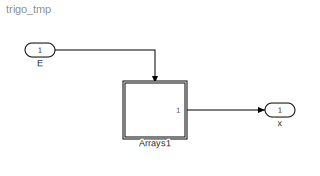
MODEL trigo_tmp
KIND model
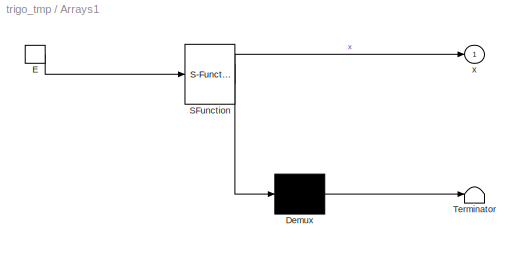
BLOCK [SubSystem] Arrays1
  ErrorFcn = Stateflow.Translate.translate
  PermitHierarchicalResolution = ParametersOnly
  Ports = [0, 1, 0, 1]
  RequestExecContextInheritance = off
  SFBlockType = Chart
  SID = 1
  TreatAsAtomicUnit = on
  Variant = off
BLOCK [Demux] Arrays1/ Demux 
  Outputs = 1
  Ports = [1, 1]
  SID = 1::17
BLOCK [S-Function] Arrays1/ SFunction 
  EnableBusSupport = off
  FunctionName = sf_sfun
  PortCounts = [1 2]
  Ports = [1, 2]
  SFunctionDeploymentMode = off
  SID = 1::16
  Tag = Stateflow S-Function trigo_tmp 1
BLOCK [Terminator] Arrays1/ Terminator 
  SID = 1::18
BLOCK [TriggerPort] Arrays1/E
  Ports = [0, 1]
  SID = 1::1
  ShowOutputPort = on
BLOCK [Outport] Arrays1/x
  IconDisplay = Port number
  SID = 1::5
BLOCK [Inport] E
  IconDisplay = Port number
  SID = 10
BLOCK [Outport] x
  IconDisplay = Port number
  SID = 9
LINE Arrays1/ Demux :1 -> Arrays1/ Terminator :1
LINE Arrays1/ SFunction :1 -> Arrays1/ Demux :1
LINE Arrays1/ SFunction :2 -> Arrays1/x:1
LINE Arrays1/E:1 -> Arrays1/ SFunction :1
LINE Arrays1:1 -> x:1
LINE E:1 -> Arrays1:trigger
CHART Arrays1 states=3 transitions=4
  STATE_LABEL 'A/\\nen:x=cos(1.0*x);'
  STATE_LABEL 'B/\\nen:x=cos(10.0*x);'
  STATE_LABEL 'C/\\nen:x=cos(2.0*x);'
